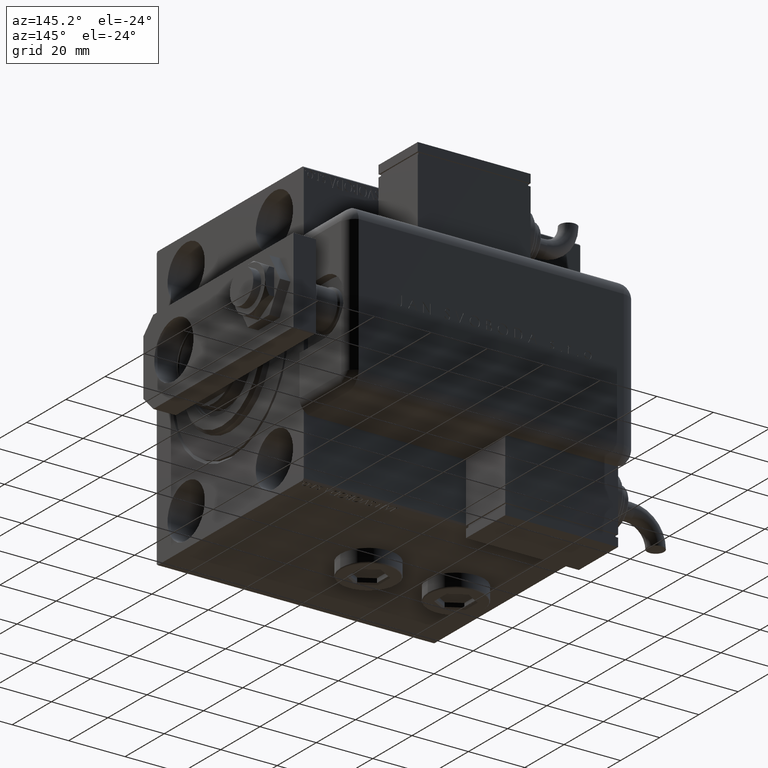
[diagram: clean part render]
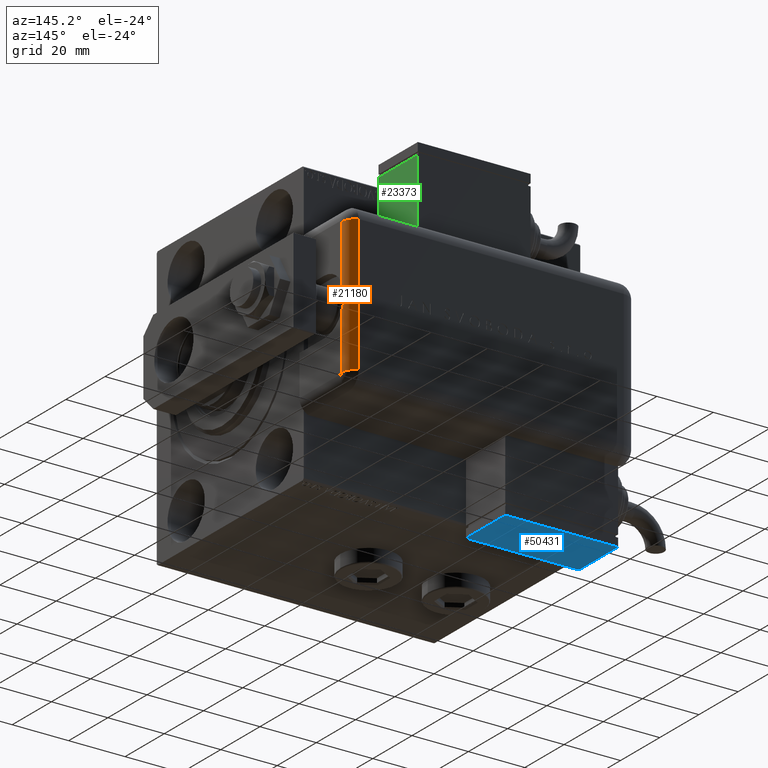
[diagram: same view with three faces highlighted in distinct colors, each labeled with its STEP entity id]
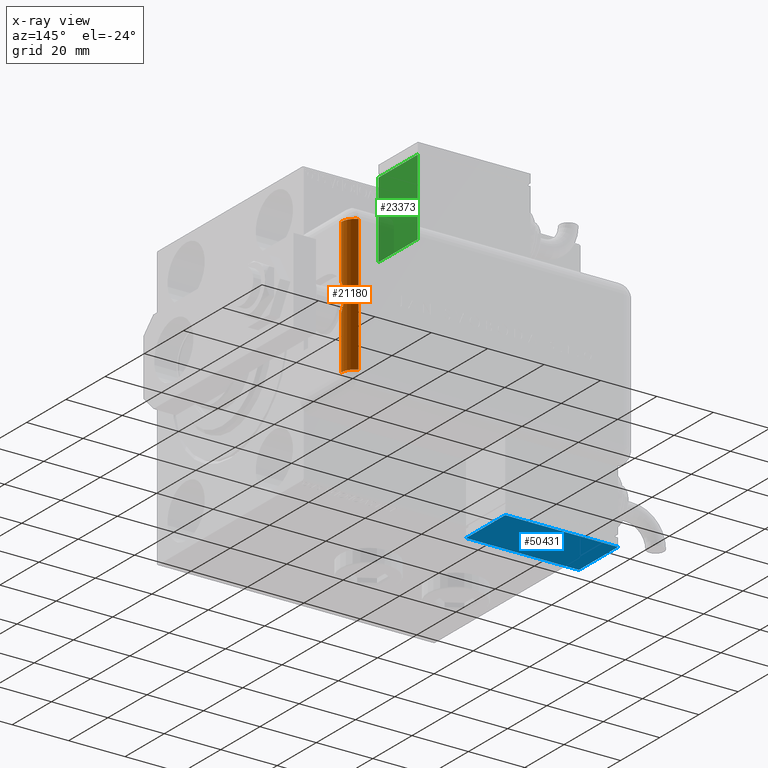
[diagram: x-ray of the same camera — body ghosted, the three highlighted faces saturated]
A machine part, auxiliary view with three faces highlighted in distinct colors.
The next image is the same camera in x-ray (body ghosted, the three faces saturated) — at least one of them is partly hidden behind the body in this view.
Their STEP definitions:

[orange] entity #21180 — the highlighted cylindrical surface (edge-blend (fillet) strip) has radius 5 mm, axis along (-0, -0, 1).
#14 = CARTESIAN_POINT ( 'NONE',  ( -0.4272404019587370816, 22.49990410585946421, 101.8327265151484795 ) ) ;
#2540 = DIRECTION ( 'NONE',  ( -1.000000000000000000, 0.000000000000000000, -0.000000000000000000 ) ) ;
#3150 = EDGE_CURVE ( 'NONE', #58307, #37044, #44362, .T. ) ;
#4178 = DIRECTION ( 'NONE',  ( 0.000000000000000000, 0.000000000000000000, -1.000000000000000000 ) ) ;
#4492 = VECTOR ( 'NONE', #2540, 1000.000000000000000 ) ;
#6467 = CARTESIAN_POINT ( 'NONE',  ( 23.99999999999999289, 25.79999999999998295, 99.00000000000000000 ) ) ;
#7667 = CARTESIAN_POINT ( 'NONE',  ( 4.899643580265684584, 21.21742430504414045, 102.0000000000000142 ) ) ;
#8252 = EDGE_CURVE ( 'NONE', #60552, #58307, #58190, .T. ) ;
#8477 = CIRCLE ( 'NONE', #38334, 5.000000000000004441 ) ;
#9201 = CARTESIAN_POINT ( 'NONE',  ( 23.99999999999999289, 21.21742430504414045, 97.00000000000000000 ) ) ;
#9683 = CARTESIAN_POINT ( 'NONE',  ( -4.899643580265686360, 21.21742430504414045, 102.0000000000000142 ) ) ;
#10093 = CARTESIAN_POINT ( 'NONE',  ( -23.99999999999999645, 25.79999999999998295, 99.00000000000000000 ) ) ;
#10298 = CARTESIAN_POINT ( 'NONE',  ( -1.704474330344695199, 22.36301991028238589, 101.8673205824228347 ) ) ;
#11880 = CARTESIAN_POINT ( 'NONE',  ( 23.99999999999999289, 21.21742430504414401, 97.00000000000000000 ) ) ;
#13901 = CYLINDRICAL_SURFACE ( 'NONE', #57061, 5.000000000000004441 ) ;
#14832 = LINE ( 'NONE', #23266, #26636 ) ;
#15721 = ORIENTED_EDGE ( 'NONE', *, *, #3150, .F. ) ;
#19042 = CARTESIAN_POINT ( 'NONE',  ( -2.126976179448856197, 22.28041711506194744, 101.8869335919387851 ) ) ;
#19170 = VECTOR ( 'NONE', #35347, 1000.000000000000000 ) ;
#21180 = ADVANCED_FACE ( 'NONE', ( #42277 ), #13901, .T. ) ;
#21542 = DIRECTION ( 'NONE',  ( 1.000000000000000000, 0.000000000000000000, -0.000000000000000000 ) ) ;
#21930 = CARTESIAN_POINT ( 'NONE',  ( -23.99999999999999289, 21.21742430504414045, 102.0000000000000142 ) ) ;
#23266 = CARTESIAN_POINT ( 'NONE',  ( 23.99999999999999289, 25.79999999999998295, 99.00000000000000000 ) ) ;
#24344 = CARTESIAN_POINT ( 'NONE',  ( 1.695524554190644739, 22.36448231999430547, 101.8669697265219298 ) ) ;
#24650 = CARTESIAN_POINT ( 'NONE',  ( 3.358724364638090432, 21.95764543947605674, 101.9498052832646096 ) ) ;
#25184 = EDGE_CURVE ( 'NONE', #53137, #38969, #47234, .T. ) ;
#26636 = VECTOR ( 'NONE', #43216, 1000.000000000000000 ) ;
#27390 = EDGE_LOOP ( 'NONE', ( #60303, #30328, #58730, #59862, #54318, #15721 ) ) ;
#28288 = AXIS2_PLACEMENT_3D ( 'NONE', #11880, #21542, #46177 ) ;
#28506 = CARTESIAN_POINT ( 'NONE',  ( -23.99999999999999645, 21.21742430504414401, 97.00000000000000000 ) ) ;
#29019 = CARTESIAN_POINT ( 'NONE',  ( 4.899643580265684584, 21.21742430504414045, 102.0000000000000142 ) ) ;
#30328 = ORIENTED_EDGE ( 'NONE', *, *, #59940, .F. ) ;
#30380 = DIRECTION ( 'NONE',  ( 0.000000000000000000, 0.000000000000000000, 1.000000000000000000 ) ) ;
#31992 = EDGE_CURVE ( 'NONE', #43214, #37044, #8477, .T. ) ;
#32398 = CARTESIAN_POINT ( 'NONE',  ( -23.99999999999999645, 21.21742430504414045, 102.0000000000000142 ) ) ;
#34001 = CARTESIAN_POINT ( 'NONE',  ( -4.147182090953424272, 21.64034658395930322, 102.0000000000000142 ) ) ;
#35347 = DIRECTION ( 'NONE',  ( -1.000000000000000000, 0.000000000000000000, -0.000000000000000000 ) ) ;
#37044 = VERTEX_POINT ( 'NONE', #32398 ) ;
#37947 = EDGE_CURVE ( 'NONE', #53137, #43214, #14832, .T. ) ;
#38334 = AXIS2_PLACEMENT_3D ( 'NONE', #28506, #46638, #4178 ) ;
#38969 = VERTEX_POINT ( 'NONE', #59551 ) ;
#38978 = CARTESIAN_POINT ( 'NONE',  ( 0.4227564763960088845, 22.50009467200081303, 101.8326759398339334 ) ) ;
#42277 = FACE_OUTER_BOUND ( 'NONE', #27390, .T. ) ;
#42751 = CARTESIAN_POINT ( 'NONE',  ( 2.120548922004970471, 22.28188573776162684, 101.8866191559994263 ) ) ;
#43060 = CARTESIAN_POINT ( 'NONE',  ( 4.147246859832670829, 21.64031018049891841, 102.0000000000000000 ) ) ;
#43214 = VERTEX_POINT ( 'NONE', #10093 ) ;
#43216 = DIRECTION ( 'NONE',  ( -1.000000000000000000, 0.000000000000000000, 0.000000000000000000 ) ) ;
#44362 = LINE ( 'NONE', #45599, #4492 ) ;
#45599 = CARTESIAN_POINT ( 'NONE',  ( -23.99999999999999289, 21.21742430504414045, 102.0000000000000142 ) ) ;
#46177 = DIRECTION ( 'NONE',  ( 0.000000000000000000, 0.000000000000000000, -1.000000000000000000 ) ) ;
#46638 = DIRECTION ( 'NONE',  ( 1.000000000000000000, 0.000000000000000000, 0.000000000000000000 ) ) ;
#47234 = CIRCLE ( 'NONE', #28288, 5.000000000000004441 ) ;
#52764 = CARTESIAN_POINT ( 'NONE',  ( 0.8473105964929726897, 22.47320809119042195, 101.8400561454382398 ) ) ;
#53137 = VERTEX_POINT ( 'NONE', #6467 ) ;
#53519 = DIRECTION ( 'NONE',  ( -1.000000000000000000, 0.000000000000000000, 0.000000000000000000 ) ) ;
#54318 = ORIENTED_EDGE ( 'NONE', *, *, #31992, .T. ) ;
#57061 = AXIS2_PLACEMENT_3D ( 'NONE', #9201, #53519, #30380 ) ;
#57459 = CARTESIAN_POINT ( 'NONE',  ( -0.8526831356307379428, 22.47282938210785375, 101.8401608480814673 ) ) ;
#57768 = CARTESIAN_POINT ( 'NONE',  ( -3.360120651465719810, 21.95684709623621345, 101.9499038900309387 ) ) ;
#58190 = B_SPLINE_CURVE_WITH_KNOTS ( 'NONE', 3,
 ( #29019, #43060, #24650, #42751, #24344, #52764, #38978, #14, #57459, #10298, #19042, #57768, #34001, #9683 ),
 .UNSPECIFIED., .F., .F.,
 ( 4, 2, 2, 2, 2, 2, 4 ),
 ( 0.000000000000000000, 0.002552242785223138820, 0.003828364177834708230, 0.005104485570446277640, 0.006380606963057847483, 0.007656728355669416460, 0.01020897114089255528 ),
 .UNSPECIFIED. ) ;
#58307 = VERTEX_POINT ( 'NONE', #60240 ) ;
#58730 = ORIENTED_EDGE ( 'NONE', *, *, #25184, .F. ) ;
#59113 = LINE ( 'NONE', #21930, #19170 ) ;
#59551 = CARTESIAN_POINT ( 'NONE',  ( 23.99999999999999289, 21.21742430504414045, 102.0000000000000142 ) ) ;
#59862 = ORIENTED_EDGE ( 'NONE', *, *, #37947, .T. ) ;
#59940 = EDGE_CURVE ( 'NONE', #38969, #60552, #59113, .T. ) ;
#60240 = CARTESIAN_POINT ( 'NONE',  ( -4.899643580265686360, 21.21742430504414045, 102.0000000000000142 ) ) ;
#60303 = ORIENTED_EDGE ( 'NONE', *, *, #8252, .F. ) ;
#60552 = VERTEX_POINT ( 'NONE', #7667 ) ;

[blue] entity #50431 — the highlighted planar face has unit normal (0, -0, 1).
#450 = LINE ( 'NONE', #15108, #24209 ) ;
#1360 = DIRECTION ( 'NONE',  ( -1.000000000000000000, -0.000000000000000000, -0.000000000000000000 ) ) ;
#3737 = ORIENTED_EDGE ( 'NONE', *, *, #31588, .T. ) ;
#11287 = VERTEX_POINT ( 'NONE', #46802 ) ;
#14145 = VECTOR ( 'NONE', #59266, 1000.000000000000000 ) ;
#14741 = ORIENTED_EDGE ( 'NONE', *, *, #20656, .T. ) ;
#15108 = CARTESIAN_POINT ( 'NONE',  ( -19.99999999999994316, -17.49999999999996092, 10.00000000000000000 ) ) ;
#17289 = EDGE_LOOP ( 'NONE', ( #3737, #17953, #18401, #14741 ) ) ;
#17953 = ORIENTED_EDGE ( 'NONE', *, *, #60818, .T. ) ;
#18401 = ORIENTED_EDGE ( 'NONE', *, *, #49731, .T. ) ;
#18950 = AXIS2_PLACEMENT_3D ( 'NONE', #24102, #24719, #43130 ) ;
#19782 = CARTESIAN_POINT ( 'NONE',  ( 20.00000000000005329, -17.49999999999996092, 10.00000000000000000 ) ) ;
#20656 = EDGE_CURVE ( 'NONE', #32499, #11287, #21773, .T. ) ;
#21773 = LINE ( 'NONE', #40791, #14145 ) ;
#24102 = CARTESIAN_POINT ( 'NONE',  ( 0.000000000000000000, -17.49999999999996092, 0.000000000000000000 ) ) ;
#24209 = VECTOR ( 'NONE', #1360, 1000.000000000000000 ) ;
#24719 = DIRECTION ( 'NONE',  ( 0.000000000000000000, 1.000000000000000000, 0.000000000000000000 ) ) ;
#25574 = VERTEX_POINT ( 'NONE', #19782 ) ;
#28369 = VECTOR ( 'NONE', #54882, 1000.000000000000000 ) ;
#31588 = EDGE_CURVE ( 'NONE', #11287, #25574, #60171, .T. ) ;
#32499 = VERTEX_POINT ( 'NONE', #37937 ) ;
#35584 = VERTEX_POINT ( 'NONE', #39143 ) ;
#37937 = CARTESIAN_POINT ( 'NONE',  ( -19.99999999999994316, -17.49999999999996092, -9.999999999999998224 ) ) ;
#39143 = CARTESIAN_POINT ( 'NONE',  ( -19.99999999999994316, -17.49999999999996092, 10.00000000000000000 ) ) ;
#39646 = DIRECTION ( 'NONE',  ( -0.000000000000000000, -0.000000000000000000, -1.000000000000000000 ) ) ;
#40791 = CARTESIAN_POINT ( 'NONE',  ( -19.99999999999994316, -17.49999999999996092, -9.999999999999998224 ) ) ;
#41398 = CARTESIAN_POINT ( 'NONE',  ( 20.00000000000005329, -17.49999999999996092, -9.999999999999998224 ) ) ;
#42827 = VECTOR ( 'NONE', #39646, 1000.000000000000000 ) ;
#43130 = DIRECTION ( 'NONE',  ( 0.000000000000000000, -0.000000000000000000, 1.000000000000000000 ) ) ;
#44964 = LINE ( 'NONE', #53442, #42827 ) ;
#46802 = CARTESIAN_POINT ( 'NONE',  ( 20.00000000000005329, -17.49999999999996092, -9.999999999999998224 ) ) ;
#48442 = FACE_OUTER_BOUND ( 'NONE', #17289, .T. ) ;
#49731 = EDGE_CURVE ( 'NONE', #35584, #32499, #44964, .T. ) ;
#50431 = ADVANCED_FACE ( 'NONE', ( #48442 ), #52527, .F. ) ;
#52527 = PLANE ( 'NONE',  #18950 ) ;
#53442 = CARTESIAN_POINT ( 'NONE',  ( -19.99999999999994316, -17.49999999999996092, -9.999999999999998224 ) ) ;
#54882 = DIRECTION ( 'NONE',  ( 0.000000000000000000, 0.000000000000000000, 1.000000000000000000 ) ) ;
#59266 = DIRECTION ( 'NONE',  ( 1.000000000000000000, 0.000000000000000000, 0.000000000000000000 ) ) ;
#60171 = LINE ( 'NONE', #41398, #28369 ) ;
#60818 = EDGE_CURVE ( 'NONE', #25574, #35584, #450, .T. ) ;

[green] entity #23373 — the highlighted planar face has unit normal (-1, 0, 0).
#189 = CARTESIAN_POINT ( 'NONE',  ( 20.00000000000005329, -13.49999999999996092, 10.00000000000000000 ) ) ;
#2084 = CARTESIAN_POINT ( 'NONE',  ( 20.00000000000005329, -13.49999999999996092, -10.00000000000000000 ) ) ;
#4863 = FACE_OUTER_BOUND ( 'NONE', #56988, .T. ) ;
#7779 = LINE ( 'NONE', #46464, #10735 ) ;
#8893 = EDGE_CURVE ( 'NONE', #46978, #48138, #28563, .T. ) ;
#9450 = VECTOR ( 'NONE', #51272, 1000.000000000000000 ) ;
#10735 = VECTOR ( 'NONE', #17763, 1000.000000000000000 ) ;
#17030 = ORIENTED_EDGE ( 'NONE', *, *, #27440, .T. ) ;
#17090 = VECTOR ( 'NONE', #40591, 1000.000000000000000 ) ;
#17763 = DIRECTION ( 'NONE',  ( 1.284980352575412699E-16, 1.000000000000000000, 0.000000000000000000 ) ) ;
#18483 = CARTESIAN_POINT ( 'NONE',  ( 20.00000000000005329, -13.49999999999996092, 10.00000000000000000 ) ) ;
#21882 = LINE ( 'NONE', #23333, #17090 ) ;
#23114 = CARTESIAN_POINT ( 'NONE',  ( 20.00000000000005684, 13.50000000000003730, 10.00000000000000000 ) ) ;
#23333 = CARTESIAN_POINT ( 'NONE',  ( 20.00000000000005329, -13.49999999999996092, -10.00000000000000000 ) ) ;
#23373 = ADVANCED_FACE ( 'NONE', ( #4863 ), #28887, .F. ) ;
#27440 = EDGE_CURVE ( 'NONE', #52368, #41770, #27848, .T. ) ;
#27848 = LINE ( 'NONE', #18483, #9450 ) ;
#28563 = LINE ( 'NONE', #38212, #54578 ) ;
#28887 = PLANE ( 'NONE',  #36207 ) ;
#29242 = ORIENTED_EDGE ( 'NONE', *, *, #38574, .F. ) ;
#36207 = AXIS2_PLACEMENT_3D ( 'NONE', #189, #42003, #57633 ) ;
#38212 = CARTESIAN_POINT ( 'NONE',  ( 20.00000000000005684, 13.50000000000003730, 10.00000000000000000 ) ) ;
#38574 = EDGE_CURVE ( 'NONE', #52368, #46978, #7779, .T. ) ;
#40591 = DIRECTION ( 'NONE',  ( 1.284980352575412699E-16, 1.000000000000000000, 0.000000000000000000 ) ) ;
#41156 = CARTESIAN_POINT ( 'NONE',  ( 20.00000000000005684, 13.50000000000003730, -10.00000000000000000 ) ) ;
#41364 = CARTESIAN_POINT ( 'NONE',  ( 20.00000000000005329, -13.49999999999996092, 10.00000000000000000 ) ) ;
#41770 = VERTEX_POINT ( 'NONE', #2084 ) ;
#42003 = DIRECTION ( 'NONE',  ( -1.000000000000000000, 1.284980352575412699E-16, 0.000000000000000000 ) ) ;
#44114 = ORIENTED_EDGE ( 'NONE', *, *, #8893, .F. ) ;
#46464 = CARTESIAN_POINT ( 'NONE',  ( 20.00000000000005329, -13.49999999999996092, 10.00000000000000000 ) ) ;
#46978 = VERTEX_POINT ( 'NONE', #23114 ) ;
#47598 = DIRECTION ( 'NONE',  ( -0.000000000000000000, -0.000000000000000000, -1.000000000000000000 ) ) ;
#48138 = VERTEX_POINT ( 'NONE', #41156 ) ;
#48771 = ORIENTED_EDGE ( 'NONE', *, *, #57209, .T. ) ;
#51272 = DIRECTION ( 'NONE',  ( -0.000000000000000000, -0.000000000000000000, -1.000000000000000000 ) ) ;
#52368 = VERTEX_POINT ( 'NONE', #41364 ) ;
#54578 = VECTOR ( 'NONE', #47598, 1000.000000000000000 ) ;
#56988 = EDGE_LOOP ( 'NONE', ( #48771, #44114, #29242, #17030 ) ) ;
#57209 = EDGE_CURVE ( 'NONE', #41770, #48138, #21882, .T. ) ;
#57633 = DIRECTION ( 'NONE',  ( -1.284980352575412699E-16, -1.000000000000000000, 0.000000000000000000 ) ) ;